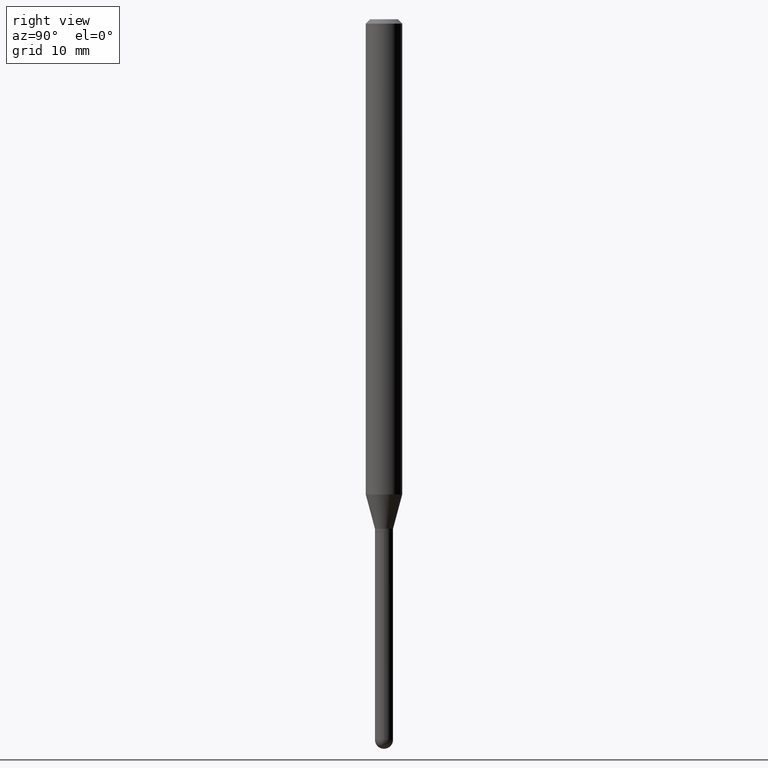
[diagram: clean part render]
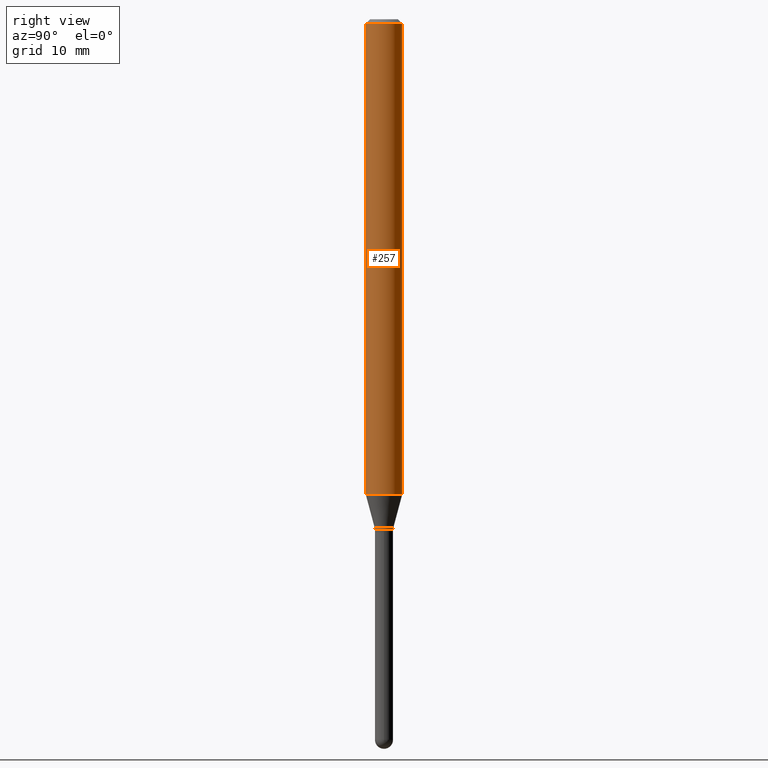
[diagram: same view with one face highlighted and labeled with its STEP entity id]
A machine part, right view. The second image highlights one B-rep face of the part: STEP entity #257.
In plain terms, the highlighted cylindrical surface (edge-blend (fillet) strip) has radius 1.5875 mm, axis along (-0, 0, 1).
Its self-contained STEP definition (entity closure, byte-faithful):
#7 = DIRECTION ( 'NONE',  ( -6.982962677686265922E-15, -1.000000000000000000, 3.491507680824188299E-15 ) ) ;
#20 = EDGE_CURVE ( 'NONE', #472, #400, #196, .T. ) ;
#28 = LINE ( 'NONE', #345, #503 ) ;
#30 = CARTESIAN_POINT ( 'NONE',  ( 4.440892098501026509E-16, 0.06249999999999995143, -0.01500000000000054588 ) ) ;
#83 = ORIENTED_EDGE ( 'NONE', *, *, #234, .T. ) ;
#136 = VECTOR ( 'NONE', #473, 39.37007874015748143 ) ;
#145 = DIRECTION ( 'NONE',  ( -6.982962677686265922E-15, -1.000000000000000000, 3.483106191921935554E-15 ) ) ;
#148 = CARTESIAN_POINT ( 'NONE',  ( 4.440892098501021578E-16, 0.06249999999999429623, -1.628440399561580598 ) ) ;
#189 = AXIS2_PLACEMENT_3D ( 'NONE', #417, #222, #145 ) ;
#194 = CYLINDRICAL_SURFACE ( 'NONE', #510, 0.06250000000000000000 ) ;
#196 = CIRCLE ( 'NONE', #189, 0.06250000000000000000 ) ;
#197 = CARTESIAN_POINT ( 'NONE',  ( -4.364351673553520291E-16, -0.06250000000000571765, -1.628440399561579932 ) ) ;
#216 = VERTEX_POINT ( 'NONE', #197 ) ;
#222 = DIRECTION ( 'NONE',  ( -2.445450411678088822E-29, 3.491507680824188299E-15, 1.000000000000000000 ) ) ;
#230 = DIRECTION ( 'NONE',  ( -6.982962677686265922E-15, -1.000000000000000000, 4.370956789862821150E-15 ) ) ;
#234 = EDGE_CURVE ( 'NONE', #216, #405, #252, .T. ) ;
#252 = CIRCLE ( 'NONE', #300, 0.06250000000000000000 ) ;
#257 = ADVANCED_FACE ( 'NONE', ( #428 ), #194, .T. ) ;
#267 = EDGE_CURVE ( 'NONE', #405, #400, #318, .T. ) ;
#277 = ORIENTED_EDGE ( 'NONE', *, *, #20, .F. ) ;
#294 = CARTESIAN_POINT ( 'NONE',  ( -4.364351673553912750E-16, -0.06250000000000005551, -0.01500000000000011047 ) ) ;
#300 = AXIS2_PLACEMENT_3D ( 'NONE', #471, #358, #230 ) ;
#318 = LINE ( 'NONE', #393, #136 ) ;
#322 = CARTESIAN_POINT ( 'NONE',  ( 0.000000000000000000, 0.000000000000000000, 0.000000000000000000 ) ) ;
#345 = CARTESIAN_POINT ( 'NONE',  ( -4.364351673553916201E-16, -0.06250000000000000000, 2.182192300515117687E-16 ) ) ;
#353 = DIRECTION ( 'NONE',  ( -2.445450411678088822E-29, 3.491507680824188299E-15, 1.000000000000000000 ) ) ;
#358 = DIRECTION ( 'NONE',  ( -2.445450411678088822E-29, 3.491507680824188299E-15, 1.000000000000000000 ) ) ;
#375 = EDGE_CURVE ( 'NONE', #216, #472, #28, .T. ) ;
#393 = CARTESIAN_POINT ( 'NONE',  ( 4.440892098500625669E-16, 0.06250000000000000000, -2.182192300515117687E-16 ) ) ;
#400 = VERTEX_POINT ( 'NONE', #30 ) ;
#402 = ORIENTED_EDGE ( 'NONE', *, *, #375, .F. ) ;
#405 = VERTEX_POINT ( 'NONE', #148 ) ;
#417 = CARTESIAN_POINT ( 'NONE',  ( 3.668175617517213895E-31, -5.237261521236396735E-17, -0.01500000000000032904 ) ) ;
#428 = FACE_OUTER_BOUND ( 'NONE', #490, .T. ) ;
#438 = ORIENTED_EDGE ( 'NONE', *, *, #267, .T. ) ;
#471 = CARTESIAN_POINT ( 'NONE',  ( 3.982270245501097907E-29, -5.685712162833668296E-15, -1.628440399561580154 ) ) ;
#472 = VERTEX_POINT ( 'NONE', #294 ) ;
#473 = DIRECTION ( 'NONE',  ( -2.445450411678088822E-29, 3.491507680824188299E-15, 1.000000000000000000 ) ) ;
#490 = EDGE_LOOP ( 'NONE', ( #83, #438, #277, #402 ) ) ;
#500 = DIRECTION ( 'NONE',  ( -2.445450411678088822E-29, 3.491507680824188299E-15, 1.000000000000000000 ) ) ;
#503 = VECTOR ( 'NONE', #500, 39.37007874015748143 ) ;
#510 = AXIS2_PLACEMENT_3D ( 'NONE', #322, #353, #7 ) ;